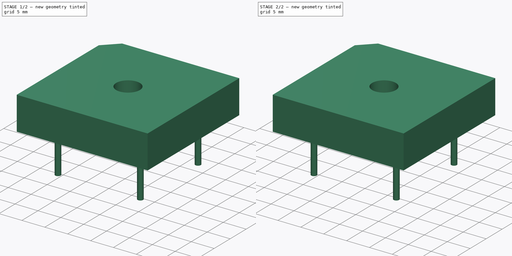
[diagram: build sequence overview — one tinted view per stage of 2, left to right]
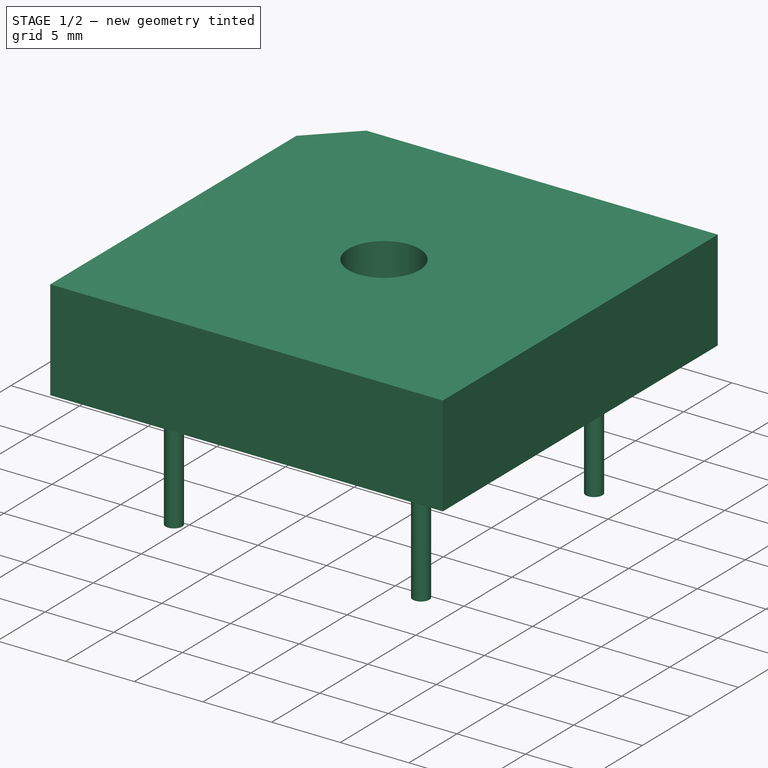
[diagram: stage 1 of 2 — iso view after this stage's code; geometry added in this stage tinted green]
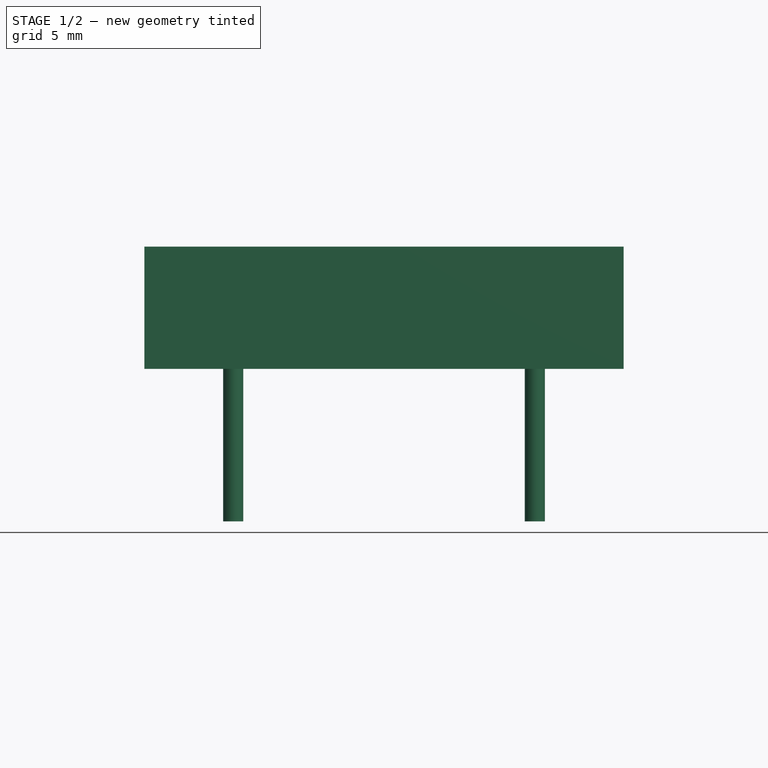
[diagram: stage 1 of 2 — front view after this stage's code; geometry added in this stage tinted green]
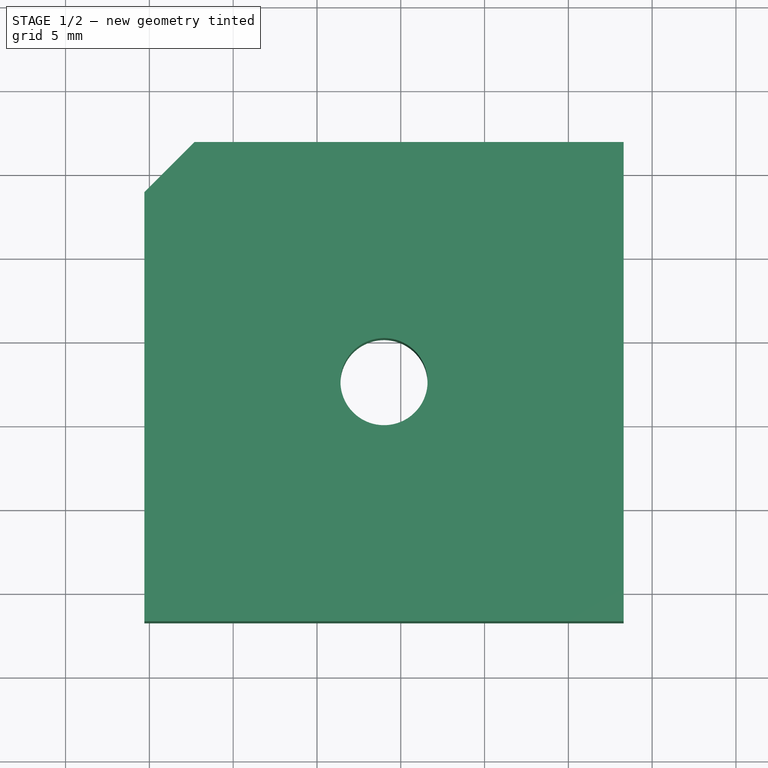
[diagram: stage 1 of 2 — top view after this stage's code; geometry added in this stage tinted green]
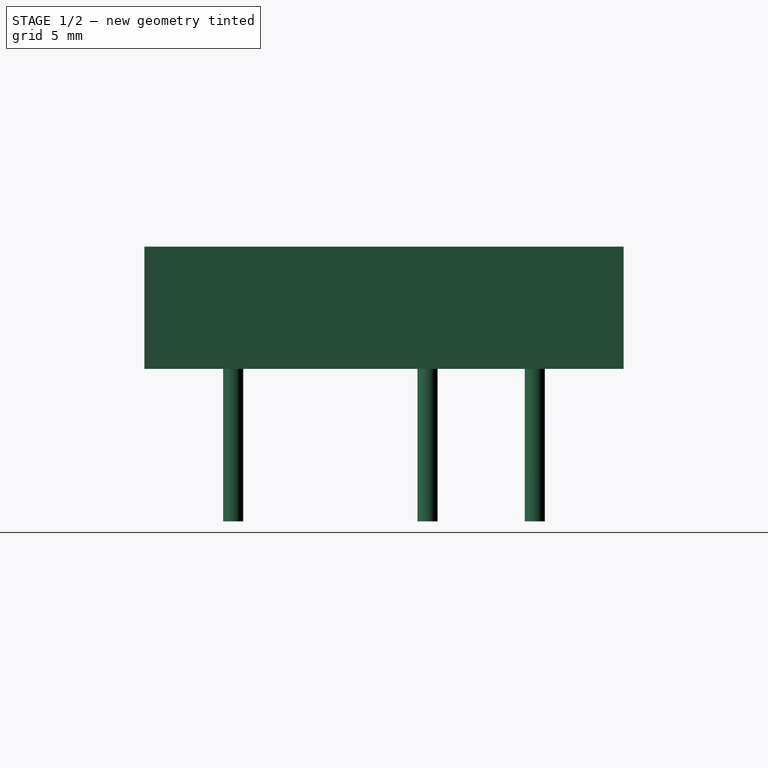
[diagram: stage 1 of 2 — right view after this stage's code; geometry added in this stage tinted green]
FCSTD DOCUMENT  (FreeCAD 0.16R6712 (Git))
Label: Diode_Bridge_28.6x28.6x7.3mm_P18.0mm_P11.6mm
License: All rights reserved
LicenseURL: http://en.wikipedia.org/wiki/All_rights_reserved
objects: Part::Feature×3, Sketcher::SketchObject×2, PartDesign::Pad×2, App::DocumentObjectGroup×1, Part::MultiFuse×1
note: 10 computed .brp shape members not serialized (recipe doc carries the construction recipe); baked Part::Feature solids carry a one-line shape summary decoded from their .brp

FEATURE [Sketcher::SketchObject] Sketch
  Placement = pos=(0,0,1) rot=(0,0,1;0rad)
  expr: Constraints[8] = 18 - 11.6
  sketch-geometry (4):
    g0: Circle CenterX=0 CenterY=0 CenterZ=0 NormalX=0 NormalY=0 NormalZ=1 Radius=0.6
    g1: Circle CenterX=18 CenterY=6.4 CenterZ=0 NormalX=0 NormalY=0 NormalZ=1 Radius=0.6
    g2: Circle CenterX=0 CenterY=-11.6 CenterZ=0 NormalX=0 NormalY=0 NormalZ=1 Radius=0.6
    g3: Circle CenterX=18 CenterY=-11.6 CenterZ=0 NormalX=0 NormalY=0 NormalZ=1 Radius=0.6
  constraints (11):
    c: Equal(g3,g1)
    c: Equal(g1,g0)
    c: Equal(g0,g2)
    c: Radius(g1) = 0.6
    c: DistanceX(g-1,g1) = 18
    c: DistanceX(g2,g3) = 18
    c: PointOnObject(g2,g-2)
    c: Coincident(g0,g-1)
    c: DistanceY(g-1,g1) = 6.4
    c: DistanceY(g3,g1) = 18
    c: DistanceY(g2,g-1) = 11.6
FEATURE [PartDesign::Pad] Pad
  Length = 10
  Length2 = 100
  Placement = pos=(0,0,1) rot=(0,0,1;0rad)
  Reversed = true
  Sketch = -> Sketch
  Type = 0
FEATURE [Part::Feature] FusionAxisZ1  label="Z"
  shape: bbox 0.8 x 0.8 x 14 mm, 8 faces (baked)
FEATURE [Part::Feature] FusionAxisY1  label="Y"
  Placement = pos=(0,0,0.05) rot=(-1,0,0;1.5708rad)
  shape: bbox 0.8 x 14 x 0.8 mm, 8 faces (baked)
FEATURE [Part::Feature] FusionAxisX1  label="X"
  Placement = pos=(0,-0.05,0) rot=(0,1,0;1.5708rad)
  shape: bbox 14 x 0.8 x 0.8 mm, 8 faces (baked)
FEATURE [App::DocumentObjectGroup] axis
  Group = -> [FusionAxisZ1,FusionAxisY1,FusionAxisX1]
FEATURE [Sketcher::SketchObject] Sketch001
  Placement = pos=(0,0,0.1) rot=(0,0,1;0rad)
  expr: Constraints[13] = (28.6 - 18) / 2
  expr: Constraints[14] = (28.6 - 18) / 2 + 18 - 11.6
  expr: Constraints[15] = 5.2 / 2
  sketch-geometry (8):
    g0: LineSegment StartX=-5.3 StartY=8.7 StartZ=0 EndX=-2.3 EndY=11.7 EndZ=0
    g1: LineSegment StartX=-2.3 StartY=11.7 StartZ=0 EndX=23.3 EndY=11.7 EndZ=0
    g2: LineSegment StartX=23.3 StartY=11.7 StartZ=0 EndX=23.3 EndY=-16.9 EndZ=0
    g3: LineSegment StartX=23.3 StartY=-16.9 StartZ=0 EndX=-5.3 EndY=-16.9 EndZ=0
    g4: LineSegment StartX=-5.3 StartY=-16.9 StartZ=0 EndX=-5.3 EndY=8.7 EndZ=0
    g5: Circle CenterX=9 CenterY=-2.6 CenterZ=0 NormalX=0 NormalY=0 NormalZ=1 Radius=2.6
    g6: LineSegment [constr] StartX=-5.3 StartY=-16.9 StartZ=0 EndX=23.3 EndY=11.7 EndZ=0
    g7: LineSegment [constr] StartX=9 StartY=-2.6 StartZ=0 EndX=23.3 EndY=-16.9 EndZ=0
  constraints (22):
    c: Coincident(g1,g0)
    c: Horizontal(g1)
    c: Coincident(g2,g1)
    c: Vertical(g2)
    c: Coincident(g3,g2)
    c: Horizontal(g3)
    c: Coincident(g4,g3)
    c: Coincident(g4,g0)
    c: Vertical(g4)
    c: DistanceY(g2,g2) = 28.6
    c: Equal(g3,g2)
    c: Angle(g0,g1) = 2.35619
    c: DistanceY(g0,g0) = 3
    c: DistanceX(g0,g-1) = 5.3
    c: DistanceY(g-1,g0) = 11.7
    c: Radius(g5) = 2.6
    c: Coincident(g6,g1)
    c: PointOnObject(g5,g6)
    c: Coincident(g6,g3)
    c: Coincident(g7,g5)
    c: Coincident(g7,g2)
    c: Perpendicular(g6,g7)
FEATURE [PartDesign::Pad] Pad001
  Length = 7.3
  Length2 = 100
  Placement = pos=(0,0,0.1) rot=(0,0,1;0rad)
  Sketch = -> Sketch001
  Type = 0
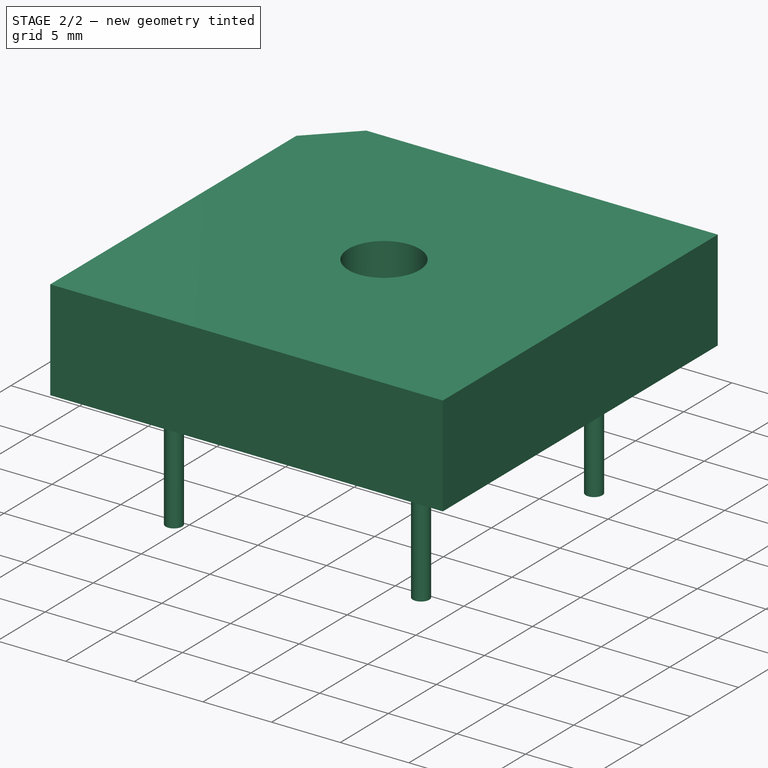
[diagram: stage 2 of 2 — iso view after this stage's code; geometry added in this stage tinted green]
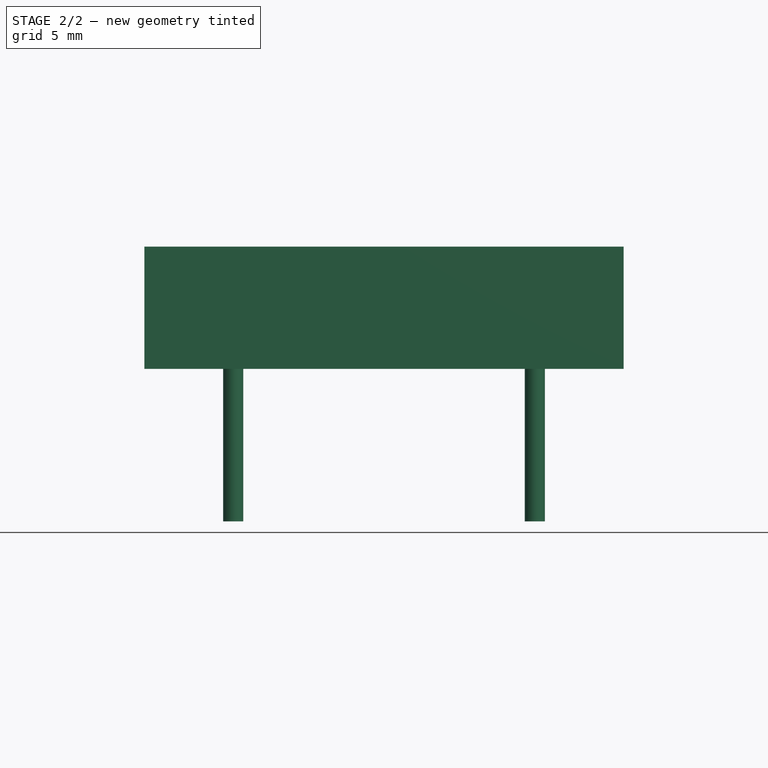
[diagram: stage 2 of 2 — front view after this stage's code; geometry added in this stage tinted green]
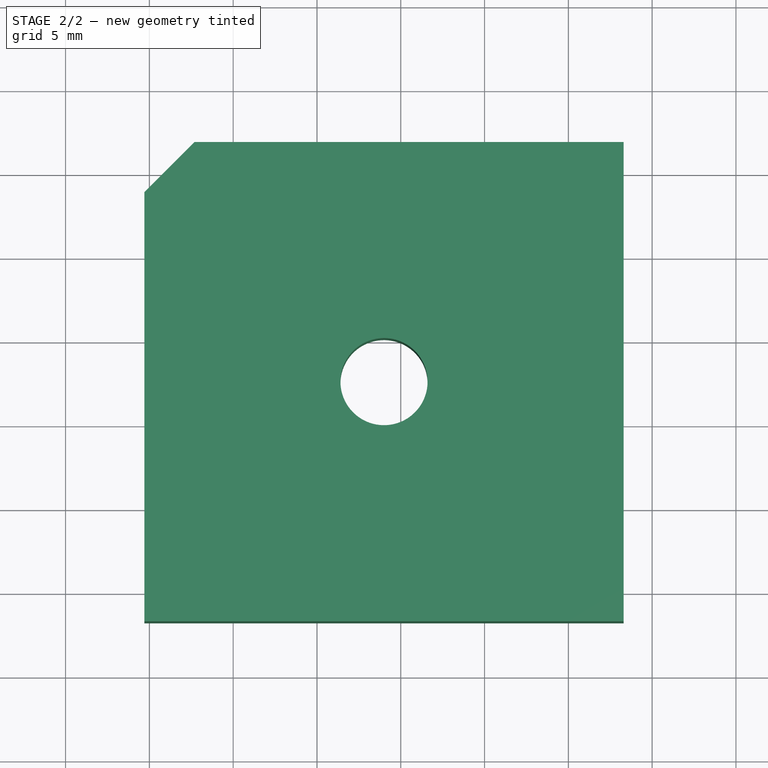
[diagram: stage 2 of 2 — top view after this stage's code; geometry added in this stage tinted green]
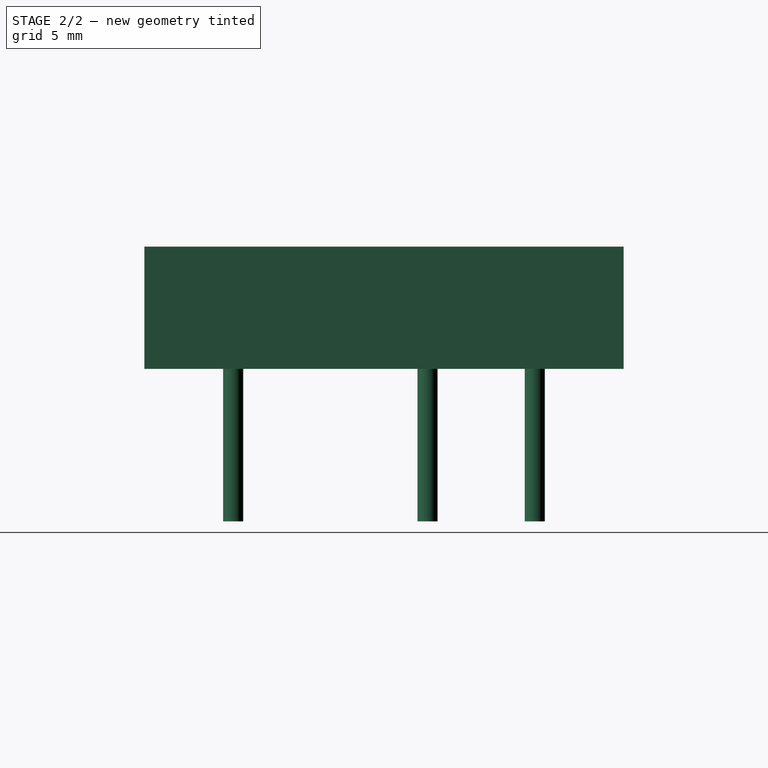
[diagram: stage 2 of 2 — right view after this stage's code; geometry added in this stage tinted green]
FEATURE [Part::MultiFuse] Pad001_mp_cp  label="Diode_Bridge_28.6x28.6x7.3mm_P18.0mm_P11.6mm"
  Shapes = -> [Pad001,Pad]
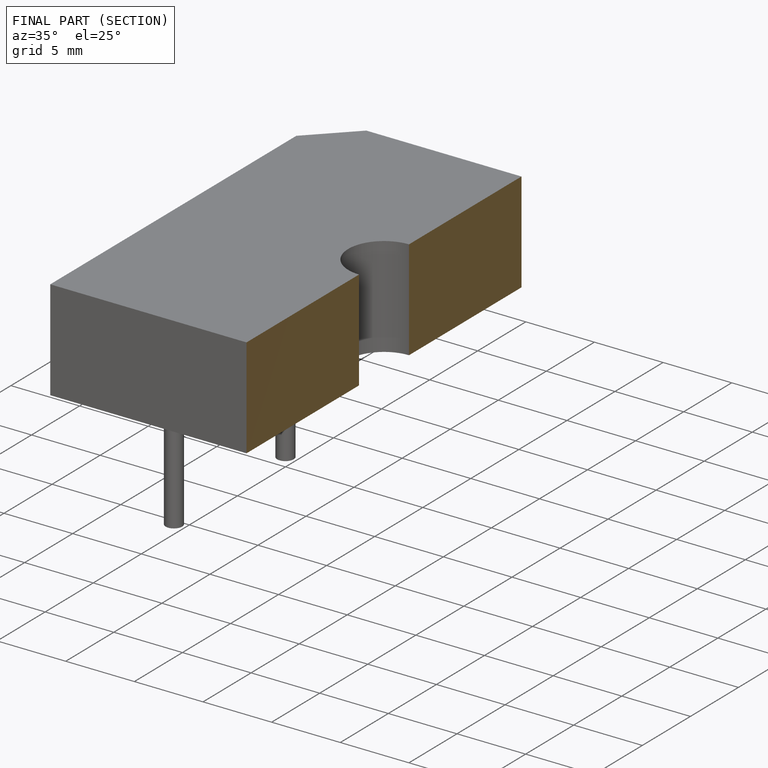
[diagram: finished part — half-section view (interior)]
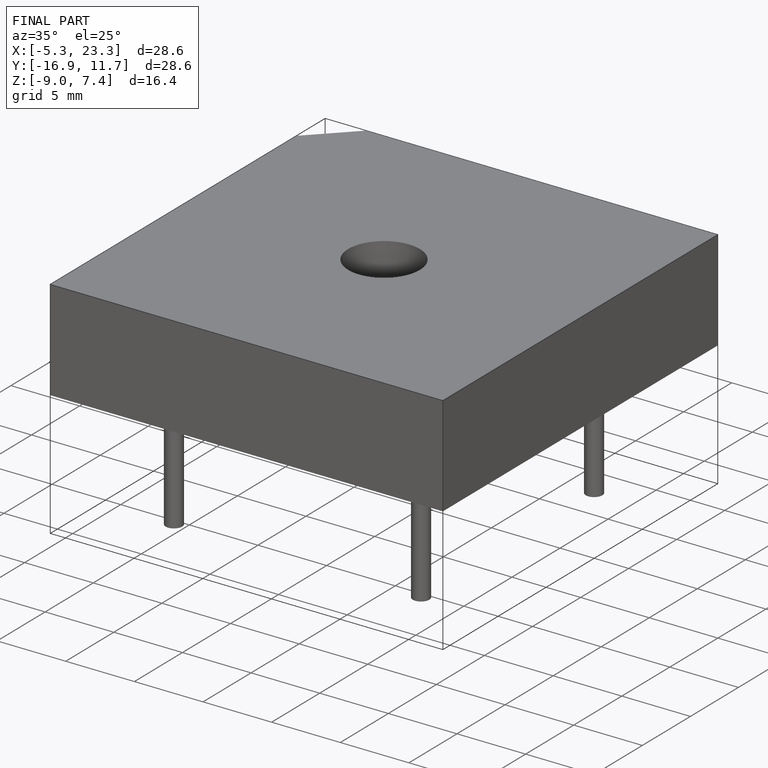
[diagram: finished part — iso view with bounding-box wireframe]
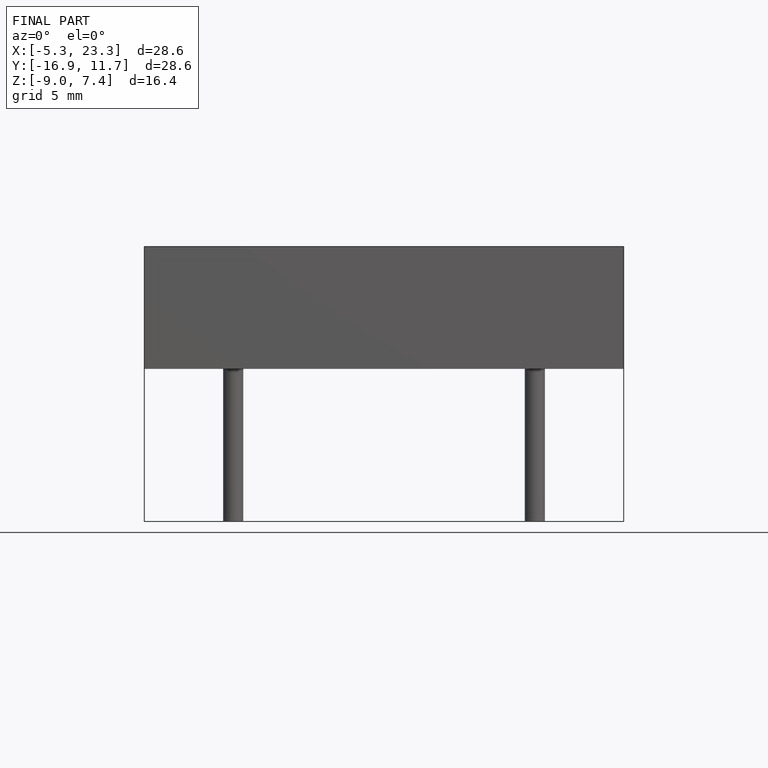
[diagram: finished part — front view with bounding-box wireframe]
